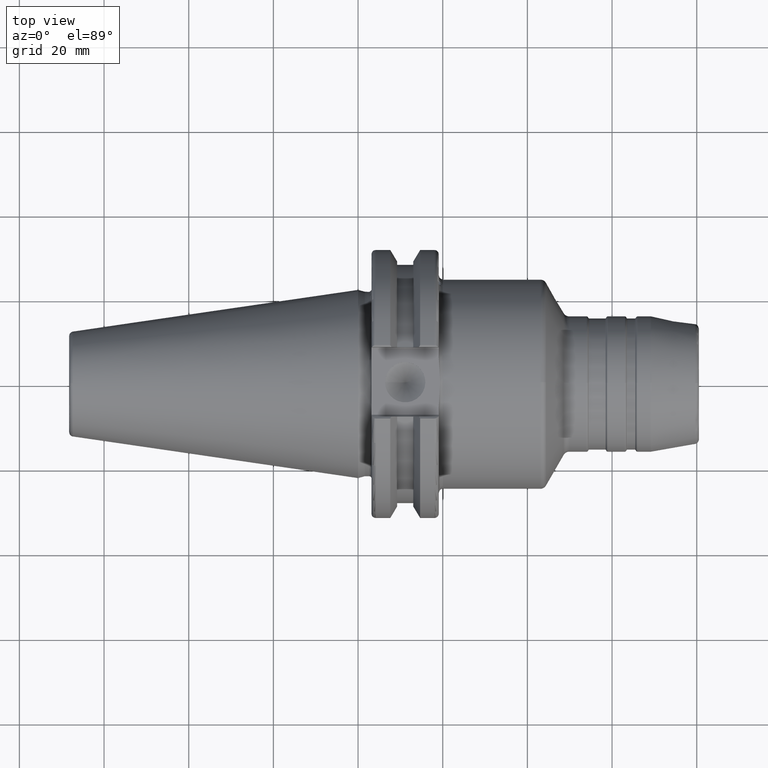
[diagram: clean part render]
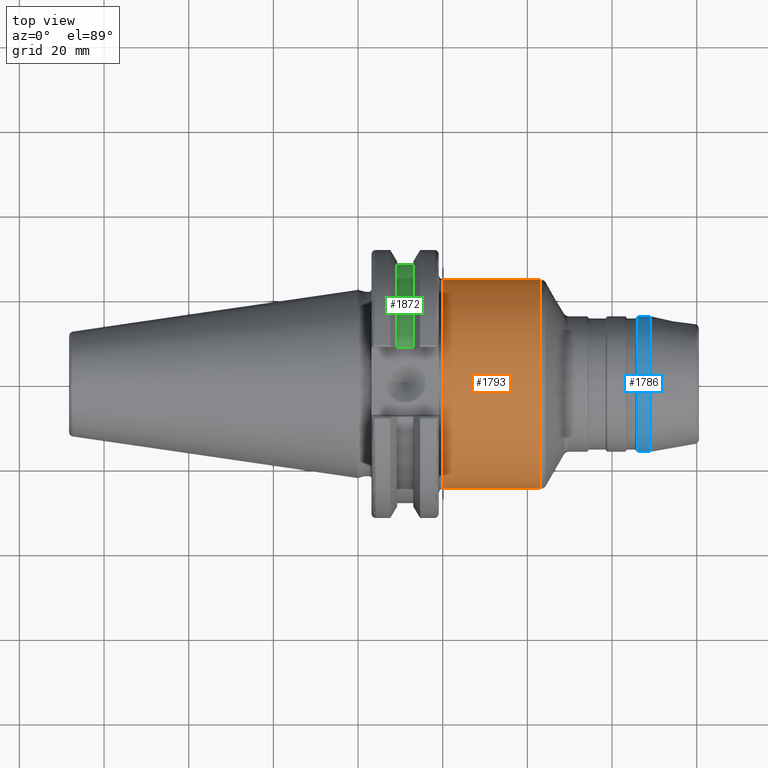
[diagram: same view with three faces highlighted in distinct colors, each labeled with its STEP entity id]
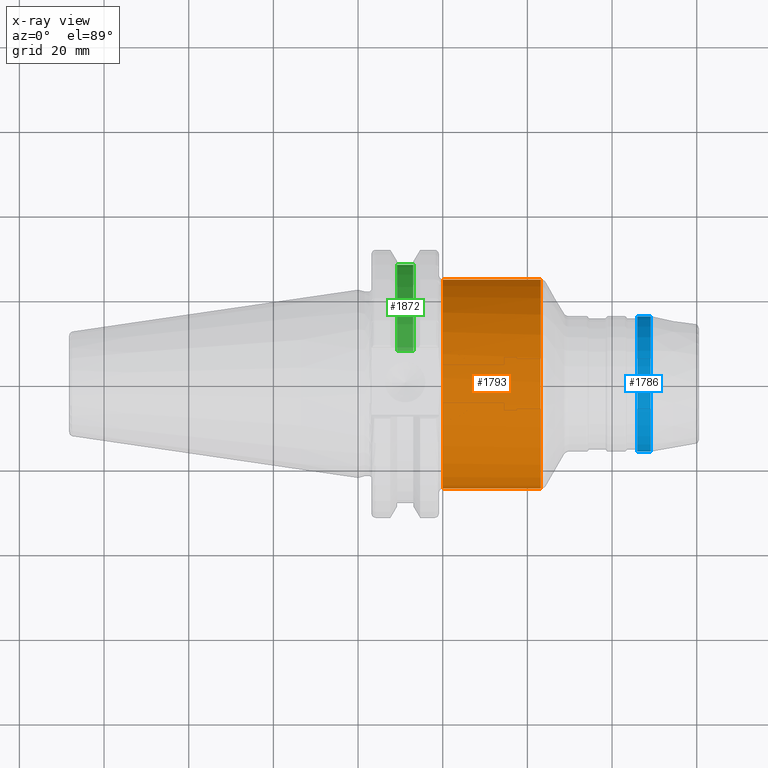
[diagram: x-ray of the same camera — body ghosted, the three highlighted faces saturated]
A machine part, top view with three faces highlighted in distinct colors.
The next image is the same camera in x-ray (body ghosted, the three faces saturated) — at least one of them is partly hidden behind the body in this view.
Their STEP definitions:

[orange] entity #1793 — the highlighted cylindrical surface (bore or boss wall) has radius 24.75 mm, axis along (1, 0, 0).
#51=B_SPLINE_CURVE_WITH_KNOTS('',3,(#2841,#2842,#2843,#2844,#2845,#2846,
#2847,#2848,#2849,#2850,#2851,#2852,#2853,#2854,#2855,#2856,#2857,#2858),
 .UNSPECIFIED.,.F.,.F.,(4,2,2,2,2,2,2,2,4),(-2.48845986202559,-2.17733241913027,
-1.86620497623495,-1.55521745362387,-1.24422993101279,-0.933242408401712,
-0.622254885790633,-0.311127442895316,0.),.UNSPECIFIED.);
#181=FACE_OUTER_BOUND('',#290,.T.);
#290=EDGE_LOOP('',(#1243,#1244,#1245,#1246,#1247,#1248,#1249));
#403=LINE('',#2837,#497);
#497=VECTOR('',#2258,24.75);
#612=CIRCLE('',#1950,24.75);
#613=CIRCLE('',#1951,24.75);
#614=CIRCLE('',#1953,24.75);
#615=CIRCLE('',#1954,24.75);
#733=VERTEX_POINT('',#2830);
#734=VERTEX_POINT('',#2832);
#735=VERTEX_POINT('',#2836);
#736=VERTEX_POINT('',#2838);
#737=VERTEX_POINT('',#2840);
#930=EDGE_CURVE('',#733,#734,#612,.T.);
#931=EDGE_CURVE('',#734,#733,#613,.T.);
#932=EDGE_CURVE('',#734,#735,#403,.T.);
#933=EDGE_CURVE('',#736,#735,#614,.T.);
#934=EDGE_CURVE('',#736,#737,#51,.T.);
#935=EDGE_CURVE('',#735,#737,#615,.T.);
#1243=ORIENTED_EDGE('',*,*,#931,.F.);
#1244=ORIENTED_EDGE('',*,*,#932,.T.);
#1245=ORIENTED_EDGE('',*,*,#933,.F.);
#1246=ORIENTED_EDGE('',*,*,#934,.T.);
#1247=ORIENTED_EDGE('',*,*,#935,.F.);
#1248=ORIENTED_EDGE('',*,*,#932,.F.);
#1249=ORIENTED_EDGE('',*,*,#930,.F.);
#1749=CYLINDRICAL_SURFACE('',#1952,24.75);
#1793=ADVANCED_FACE('',(#181),#1749,.T.);
#1950=AXIS2_PLACEMENT_3D('',#2833,#2252,#2253);
#1951=AXIS2_PLACEMENT_3D('',#2834,#2254,#2255);
#1952=AXIS2_PLACEMENT_3D('',#2835,#2256,#2257);
#1953=AXIS2_PLACEMENT_3D('',#2839,#2259,#2260);
#1954=AXIS2_PLACEMENT_3D('',#2859,#2261,#2262);
#2252=DIRECTION('center_axis',(1.,0.,0.));
#2253=DIRECTION('ref_axis',(0.,-1.,1.83697019872103E-16));
#2254=DIRECTION('center_axis',(1.,0.,0.));
#2255=DIRECTION('ref_axis',(0.,-1.,1.83697019872103E-16));
#2256=DIRECTION('center_axis',(1.,0.,0.));
#2257=DIRECTION('ref_axis',(0.,1.,0.));
#2258=DIRECTION('',(-1.,0.,0.));
#2259=DIRECTION('center_axis',(-1.,0.,0.));
#2260=DIRECTION('ref_axis',(0.,-0.342020143325668,0.939692620785909));
#2261=DIRECTION('center_axis',(-1.,0.,0.));
#2262=DIRECTION('ref_axis',(0.,-0.342020143325668,0.939692620785909));
#2830=CARTESIAN_POINT('',(43.0821597408063,-3.0310008278897E-15,24.75));
#2832=CARTESIAN_POINT('',(43.0821597408063,-24.75,-3.0310008278897E-15));
#2833=CARTESIAN_POINT('Origin',(43.0821597408063,0.,0.));
#2834=CARTESIAN_POINT('Origin',(43.0821597408063,0.,0.));
#2835=CARTESIAN_POINT('Origin',(31.4990925722954,0.,0.));
#2836=CARTESIAN_POINT('',(20.05,-24.75,-3.0310008278897E-15));
#2837=CARTESIAN_POINT('',(31.4990925722954,-24.75,-3.0310008278897E-15));
#2838=CARTESIAN_POINT('',(20.05,-8.19,-23.3556502799644));
#2839=CARTESIAN_POINT('Origin',(20.05,0.,0.));
#2840=CARTESIAN_POINT('',(20.05,8.19,-23.3556502799644));
#2841=CARTESIAN_POINT('Ctrl Pts',(20.05,-8.19,-23.3556502799644));
#2842=CARTESIAN_POINT('Ctrl Pts',(21.0870914763177,-8.19,-23.3556502799644));
#2843=CARTESIAN_POINT('Ctrl Pts',(22.1874172494719,-7.98112852617488,-23.4319820145953));
#2844=CARTESIAN_POINT('Ctrl Pts',(24.2026226557734,-7.14301766428652,-23.7009173446597));
#2845=CARTESIAN_POINT('Ctrl Pts',(25.1182638848105,-6.51414519102516,-23.8889373554493));
#2846=CARTESIAN_POINT('Ctrl Pts',(26.563820070037,-5.06858900579863,-24.2368381566145));
#2847=CARTESIAN_POINT('Ctrl Pts',(27.1929429534371,-4.15281808103607,-24.420258379043));
#2848=CARTESIAN_POINT('Ctrl Pts',(28.0312404144778,-2.13713243178097,-24.6784841969773));
#2849=CARTESIAN_POINT('Ctrl Pts',(28.24,-1.03662507537027,-24.75));
#2850=CARTESIAN_POINT('Ctrl Pts',(28.24,1.03662507537026,-24.75));
#2851=CARTESIAN_POINT('Ctrl Pts',(28.0312404144778,2.13713243178097,-24.6784841969773));
#2852=CARTESIAN_POINT('Ctrl Pts',(27.1929429534371,4.15281808103606,-24.420258379043));
#2853=CARTESIAN_POINT('Ctrl Pts',(26.563820070037,5.06858900579862,-24.2368381566145));
#2854=CARTESIAN_POINT('Ctrl Pts',(25.1182638848105,6.51414519102515,-23.8889373554493));
#2855=CARTESIAN_POINT('Ctrl Pts',(24.2026226557734,7.14301766428652,-23.7009173446597));
#2856=CARTESIAN_POINT('Ctrl Pts',(22.1874172494719,7.98112852617488,-23.4319820145953));
#2857=CARTESIAN_POINT('Ctrl Pts',(21.0870914763177,8.19,-23.3556502799644));
#2858=CARTESIAN_POINT('Ctrl Pts',(20.05,8.19,-23.3556502799644));
#2859=CARTESIAN_POINT('Origin',(20.05,0.,0.));

[blue] entity #1786 — the highlighted cylindrical surface (bore or boss wall) has radius 16 mm, axis along (1, 0, 0).
#174=FACE_OUTER_BOUND('',#282,.T.);
#282=EDGE_LOOP('',(#1206,#1207,#1208,#1209,#1210,#1211));
#400=LINE('',#2796,#494);
#494=VECTOR('',#2207,16.);
#593=CIRCLE('',#1923,16.);
#594=CIRCLE('',#1924,16.);
#597=CIRCLE('',#1929,16.);
#598=CIRCLE('',#1930,16.);
#717=VERTEX_POINT('',#2783);
#718=VERTEX_POINT('',#2785);
#721=VERTEX_POINT('',#2795);
#722=VERTEX_POINT('',#2797);
#907=EDGE_CURVE('',#717,#718,#593,.T.);
#908=EDGE_CURVE('',#718,#717,#594,.T.);
#912=EDGE_CURVE('',#718,#721,#400,.T.);
#913=EDGE_CURVE('',#722,#721,#597,.T.);
#914=EDGE_CURVE('',#721,#722,#598,.T.);
#1206=ORIENTED_EDGE('',*,*,#908,.F.);
#1207=ORIENTED_EDGE('',*,*,#912,.T.);
#1208=ORIENTED_EDGE('',*,*,#913,.F.);
#1209=ORIENTED_EDGE('',*,*,#914,.F.);
#1210=ORIENTED_EDGE('',*,*,#912,.F.);
#1211=ORIENTED_EDGE('',*,*,#907,.F.);
#1747=CYLINDRICAL_SURFACE('',#1928,16.);
#1786=ADVANCED_FACE('',(#174),#1747,.T.);
#1923=AXIS2_PLACEMENT_3D('',#2786,#2194,#2195);
#1924=AXIS2_PLACEMENT_3D('',#2787,#2196,#2197);
#1928=AXIS2_PLACEMENT_3D('',#2794,#2205,#2206);
#1929=AXIS2_PLACEMENT_3D('',#2798,#2208,#2209);
#1930=AXIS2_PLACEMENT_3D('',#2799,#2210,#2211);
#2194=DIRECTION('center_axis',(1.,0.,0.));
#2195=DIRECTION('ref_axis',(0.,-1.,1.83697019872103E-16));
#2196=DIRECTION('center_axis',(1.,0.,0.));
#2197=DIRECTION('ref_axis',(0.,-1.,1.83697019872103E-16));
#2205=DIRECTION('center_axis',(1.,0.,0.));
#2206=DIRECTION('ref_axis',(0.,1.,0.));
#2207=DIRECTION('',(-1.,0.,0.));
#2208=DIRECTION('center_axis',(-1.,0.,0.));
#2209=DIRECTION('ref_axis',(0.,-1.,1.83697019872103E-16));
#2210=DIRECTION('center_axis',(-1.,0.,0.));
#2211=DIRECTION('ref_axis',(0.,-1.,1.83697019872103E-16));
#2783=CARTESIAN_POINT('',(69.0699476972386,-1.95943487863577E-15,16.));
#2785=CARTESIAN_POINT('',(69.0699476972386,-16.,-1.95943487863577E-15));
#2786=CARTESIAN_POINT('Origin',(69.0699476972386,0.,0.));
#2787=CARTESIAN_POINT('Origin',(69.0699476972386,0.,0.));
#2794=CARTESIAN_POINT('Origin',(67.4730557476797,0.,0.));
#2795=CARTESIAN_POINT('',(66.0196152422707,-16.,-1.95943487863577E-15));
#2796=CARTESIAN_POINT('',(67.4730557476797,-16.,-1.95943487863577E-15));
#2797=CARTESIAN_POINT('',(66.0196152422707,-1.95943487863577E-15,16.));
#2798=CARTESIAN_POINT('Origin',(66.0196152422707,0.,0.));
#2799=CARTESIAN_POINT('Origin',(66.0196152422707,0.,0.));

[green] entity #1872 — the highlighted cylindrical surface (partial cylindrical patch) has radius 28.15 mm, axis along (1, 0, 0).
#260=FACE_OUTER_BOUND('',#381,.T.);
#381=EDGE_LOOP('',(#1685,#1686,#1687,#1688));
#455=LINE('',#3390,#549);
#478=LINE('',#3580,#572);
#549=VECTOR('',#2592,10.);
#572=VECTOR('',#2667,10.);
#700=CIRCLE('',#2137,28.15);
#701=CIRCLE('',#2139,28.15);
#846=VERTEX_POINT('',#3387);
#847=VERTEX_POINT('',#3389);
#882=VERTEX_POINT('',#3577);
#883=VERTEX_POINT('',#3579);
#1093=EDGE_CURVE('',#847,#846,#455,.T.);
#1146=EDGE_CURVE('',#883,#882,#478,.T.);
#1166=EDGE_CURVE('',#846,#883,#700,.T.);
#1167=EDGE_CURVE('',#847,#882,#701,.T.);
#1685=ORIENTED_EDGE('',*,*,#1093,.T.);
#1686=ORIENTED_EDGE('',*,*,#1166,.T.);
#1687=ORIENTED_EDGE('',*,*,#1146,.T.);
#1688=ORIENTED_EDGE('',*,*,#1167,.F.);
#1776=CYLINDRICAL_SURFACE('',#2138,28.15);
#1872=ADVANCED_FACE('',(#260),#1776,.T.);
#2137=AXIS2_PLACEMENT_3D('',#3630,#2710,#2711);
#2138=AXIS2_PLACEMENT_3D('',#3631,#2712,#2713);
#2139=AXIS2_PLACEMENT_3D('',#3632,#2714,#2715);
#2592=DIRECTION('',(-1.,0.,0.));
#2667=DIRECTION('',(1.,0.,0.));
#2710=DIRECTION('center_axis',(1.,0.,0.));
#2711=DIRECTION('ref_axis',(0.,0.,-1.));
#2712=DIRECTION('center_axis',(1.,0.,0.));
#2713=DIRECTION('ref_axis',(0.,1.,0.));
#2714=DIRECTION('center_axis',(1.,0.,0.));
#2715=DIRECTION('ref_axis',(0.,0.,-1.));
#3387=CARTESIAN_POINT('',(9.2191,8.19,-26.932255754021));
#3389=CARTESIAN_POINT('',(13.0491,8.19,-26.932255754021));
#3390=CARTESIAN_POINT('',(11.1341,8.19,-26.932255754021));
#3577=CARTESIAN_POINT('',(13.0491,8.19,26.932255754021));
#3579=CARTESIAN_POINT('',(9.2191,8.19,26.932255754021));
#3580=CARTESIAN_POINT('',(11.1341,8.19,26.932255754021));
#3630=CARTESIAN_POINT('Origin',(9.2191,0.,0.));
#3631=CARTESIAN_POINT('Origin',(11.1341,0.,0.));
#3632=CARTESIAN_POINT('Origin',(13.0491,0.,0.));